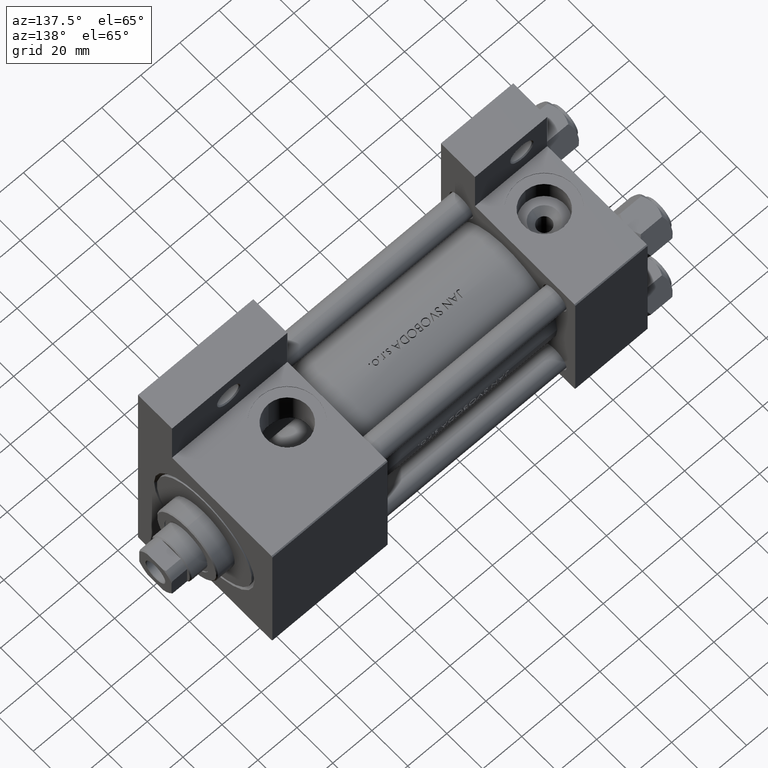
[diagram: clean part render]
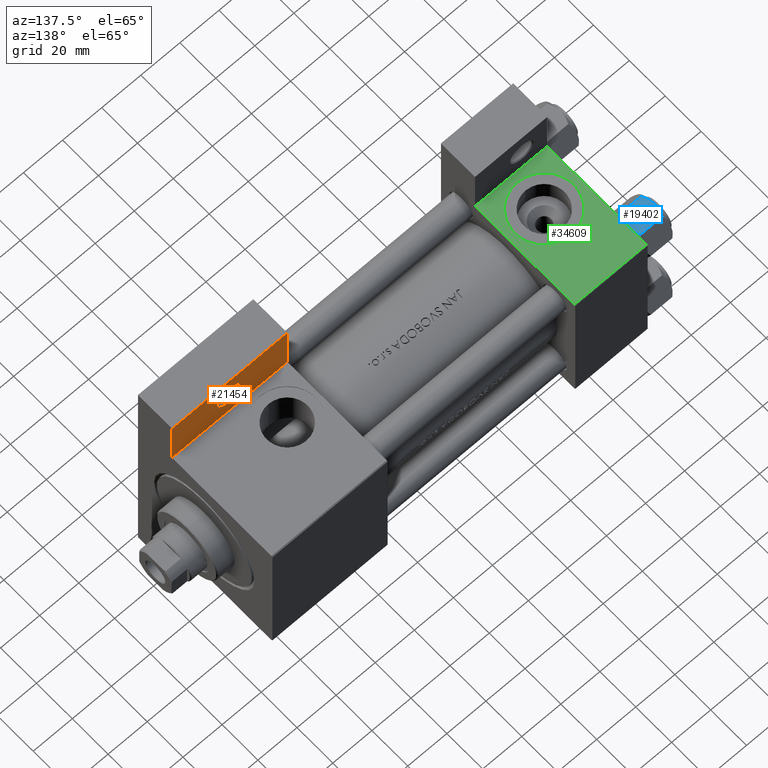
[diagram: same view with three faces highlighted in distinct colors, each labeled with its STEP entity id]
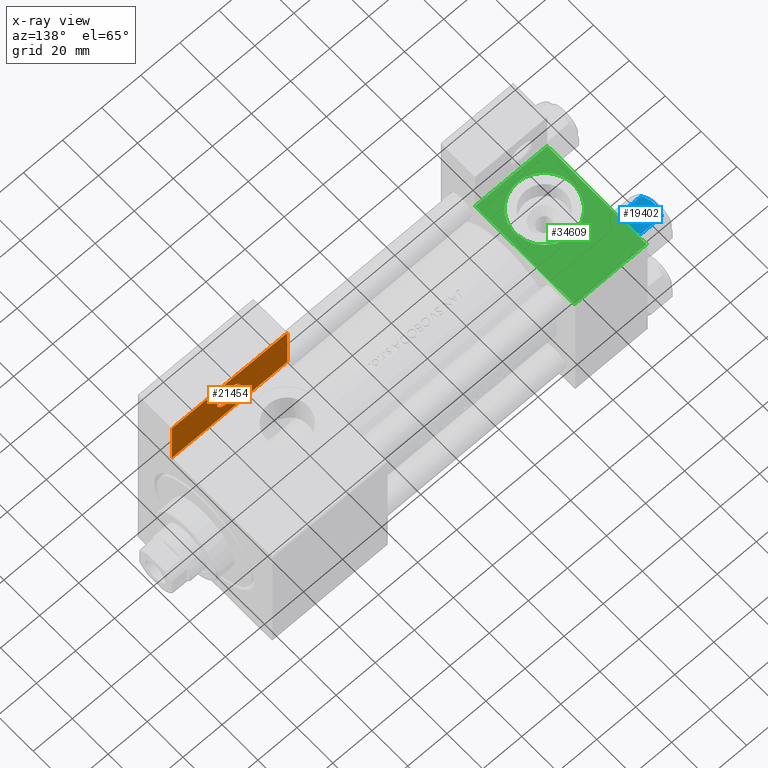
[diagram: x-ray of the same camera — body ghosted, the three highlighted faces saturated]
A machine part, auxiliary view with three faces highlighted in distinct colors.
The next image is the same camera in x-ray (body ghosted, the three faces saturated) — at least one of them is partly hidden behind the body in this view.
Their STEP definitions:

[orange] entity #21454 — the highlighted planar face has unit normal (0, -1, 0).
#479 = LINE ( 'NONE', #15669, #42305 ) ;
#1866 = ORIENTED_EDGE ( 'NONE', *, *, #17154, .T. ) ;
#4169 = CIRCLE ( 'NONE', #47095, 5.999500000000018929 ) ;
#4439 = ORIENTED_EDGE ( 'NONE', *, *, #11090, .F. ) ;
#4884 = VERTEX_POINT ( 'NONE', #49096 ) ;
#6172 = FACE_BOUND ( 'NONE', #34720, .T. ) ;
#6392 = CARTESIAN_POINT ( 'NONE',  ( 133.0000000000000000, -63.50000000000000000, -18.50000000000000000 ) ) ;
#9118 = AXIS2_PLACEMENT_3D ( 'NONE', #48513, #18129, #48027 ) ;
#9417 = CARTESIAN_POINT ( 'NONE',  ( 133.0000000000000000, -37.50000000000000000, -18.50000000000000000 ) ) ;
#9715 = EDGE_CURVE ( 'NONE', #29625, #40902, #479, .T. ) ;
#10869 = LINE ( 'NONE', #6392, #13237 ) ;
#11090 = EDGE_CURVE ( 'NONE', #31534, #29625, #39650, .T. ) ;
#11514 = AXIS2_PLACEMENT_3D ( 'NONE', #22309, #19046, #34260 ) ;
#12057 = EDGE_CURVE ( 'NONE', #33531, #4884, #4169, .T. ) ;
#12189 = VECTOR ( 'NONE', #34632, 1000.000000000000000 ) ;
#12933 = CARTESIAN_POINT ( 'NONE',  ( 192.0000000000000000, -37.50000000000000711, -18.50000000000000355 ) ) ;
#13237 = VECTOR ( 'NONE', #32816, 1000.000000000000000 ) ;
#13969 = EDGE_CURVE ( 'NONE', #48131, #31534, #15456, .T. ) ;
#14644 = CARTESIAN_POINT ( 'NONE',  ( 168.9995000000000402, -50.99999999999999289, -18.50000000000000000 ) ) ;
#15291 = CARTESIAN_POINT ( 'NONE',  ( 133.0000000000000000, -63.50000000000000000, -18.50000000000000000 ) ) ;
#15456 = LINE ( 'NONE', #45600, #12189 ) ;
#15669 = CARTESIAN_POINT ( 'NONE',  ( 192.0000000000000000, -63.50000000000002842, -18.50000000000000000 ) ) ;
#17154 = EDGE_CURVE ( 'NONE', #4884, #33531, #47270, .T. ) ;
#17887 = FACE_OUTER_BOUND ( 'NONE', #41734, .T. ) ;
#18129 = DIRECTION ( 'NONE',  ( 0.000000000000000000, 0.000000000000000000, -1.000000000000000000 ) ) ;
#19046 = DIRECTION ( 'NONE',  ( 0.000000000000000000, 0.000000000000000000, -1.000000000000000000 ) ) ;
#19797 = ORIENTED_EDGE ( 'NONE', *, *, #9715, .F. ) ;
#21454 = ADVANCED_FACE ( 'NONE', ( #6172, #17887 ), #32595, .F. ) ;
#22309 = CARTESIAN_POINT ( 'NONE',  ( 163.0000000000000284, -50.99999999999999289, -18.50000000000000000 ) ) ;
#29625 = VERTEX_POINT ( 'NONE', #12933 ) ;
#29986 = EDGE_CURVE ( 'NONE', #40902, #48131, #10869, .T. ) ;
#31534 = VERTEX_POINT ( 'NONE', #9417 ) ;
#32595 = PLANE ( 'NONE',  #9118 ) ;
#32816 = DIRECTION ( 'NONE',  ( -1.000000000000000000, 4.704334850106595794E-16, -0.000000000000000000 ) ) ;
#33280 = ORIENTED_EDGE ( 'NONE', *, *, #29986, .F. ) ;
#33531 = VERTEX_POINT ( 'NONE', #14644 ) ;
#33677 = DIRECTION ( 'NONE',  ( 0.000000000000000000, 0.000000000000000000, -1.000000000000000000 ) ) ;
#34260 = DIRECTION ( 'NONE',  ( -1.000000000000000000, 0.000000000000000000, 0.000000000000000000 ) ) ;
#34632 = DIRECTION ( 'NONE',  ( 0.000000000000000000, 1.000000000000000000, 0.000000000000000000 ) ) ;
#34720 = EDGE_LOOP ( 'NONE', ( #47427, #1866 ) ) ;
#37168 = DIRECTION ( 'NONE',  ( -1.000000000000000000, 0.000000000000000000, 0.000000000000000000 ) ) ;
#37665 = CARTESIAN_POINT ( 'NONE',  ( 163.0000000000000284, -50.99999999999999289, -18.50000000000000000 ) ) ;
#39650 = LINE ( 'NONE', #47364, #47063 ) ;
#40902 = VERTEX_POINT ( 'NONE', #42885 ) ;
#41734 = EDGE_LOOP ( 'NONE', ( #19797, #4439, #47735, #33280 ) ) ;
#42305 = VECTOR ( 'NONE', #49293, 1000.000000000000000 ) ;
#42885 = CARTESIAN_POINT ( 'NONE',  ( 192.0000000000000000, -63.50000000000002842, -18.50000000000000000 ) ) ;
#45600 = CARTESIAN_POINT ( 'NONE',  ( 133.0000000000000000, -63.50000000000000000, -18.50000000000000000 ) ) ;
#46863 = DIRECTION ( 'NONE',  ( 1.000000000000000000, -1.176083712526648949E-16, 0.000000000000000000 ) ) ;
#47063 = VECTOR ( 'NONE', #46863, 1000.000000000000000 ) ;
#47095 = AXIS2_PLACEMENT_3D ( 'NONE', #37665, #33677, #37168 ) ;
#47270 = CIRCLE ( 'NONE', #11514, 5.999500000000018929 ) ;
#47364 = CARTESIAN_POINT ( 'NONE',  ( 133.0000000000000000, -37.50000000000000000, -18.50000000000000000 ) ) ;
#47427 = ORIENTED_EDGE ( 'NONE', *, *, #12057, .T. ) ;
#47735 = ORIENTED_EDGE ( 'NONE', *, *, #13969, .F. ) ;
#48027 = DIRECTION ( 'NONE',  ( -1.000000000000000000, 0.000000000000000000, -0.000000000000000000 ) ) ;
#48131 = VERTEX_POINT ( 'NONE', #15291 ) ;
#48513 = CARTESIAN_POINT ( 'NONE',  ( 0.000000000000000000, 0.000000000000000000, -18.50000000000000000 ) ) ;
#49096 = CARTESIAN_POINT ( 'NONE',  ( 157.0005000000000166, -50.99999999999999289, -18.50000000000000000 ) ) ;
#49293 = DIRECTION ( 'NONE',  ( -0.000000000000000000, -1.000000000000000000, -0.000000000000000000 ) ) ;

[blue] entity #19402 — the highlighted planar face has unit normal (0, -0, -1).
#46 = CARTESIAN_POINT ( 'NONE',  ( -5.810000000000000497, -10.06321519197517844, -1.556784808024815225 ) ) ;
#294 = CARTESIAN_POINT ( 'NONE',  ( -3.474497094393253604, -10.06321519197517844, -0.5726960901042740248 ) ) ;
#699 = CARTESIAN_POINT ( 'NONE',  ( 1.502314598737159820E-15, -10.06321519197518022, 0.000000000000000000 ) ) ;
#4025 = CARTESIAN_POINT ( 'NONE',  ( 1.502314598737159820E-15, -10.06321519197518022, 0.000000000000000000 ) ) ;
#4781 = EDGE_CURVE ( 'NONE', #48478, #26692, #43896, .T. ) ;
#5413 = CARTESIAN_POINT ( 'NONE',  ( -4.908816193182379273, -10.06321519197517667, -12.89380709538398939 ) ) ;
#5631 = ORIENTED_EDGE ( 'NONE', *, *, #23964, .F. ) ;
#6409 = VECTOR ( 'NONE', #21484, 1000.000000000000000 ) ;
#7508 = CARTESIAN_POINT ( 'NONE',  ( 5.810000000000000497, -10.06321519197517667, -12.44321519197518633 ) ) ;
#8164 = CARTESIAN_POINT ( 'NONE',  ( 4.908816193182379273, -10.06321519197517844, -1.106192904616004835 ) ) ;
#8897 = CARTESIAN_POINT ( 'NONE',  ( -1.018274738099085086, -10.06321519197517667, -13.95177257919929126 ) ) ;
#10112 = CARTESIAN_POINT ( 'NONE',  ( 1.502314598737159820E-15, -10.06321519197518022, -14.00000000000000000 ) ) ;
#11004 = CARTESIAN_POINT ( 'NONE',  ( -3.958929922320422179, -10.06321519197517667, -0.7421398502353990789 ) ) ;
#11735 = CARTESIAN_POINT ( 'NONE',  ( -5.359707691559672860, -10.06321519197517667, -1.331638653804653405 ) ) ;
#12622 = CARTESIAN_POINT ( 'NONE',  ( 3.960942496020602555, -10.06321519197517667, -0.7115728323610392980 ) ) ;
#13263 = EDGE_CURVE ( 'NONE', #13796, #39935, #26143, .T. ) ;
#13796 = VERTEX_POINT ( 'NONE', #45505 ) ;
#14989 = CARTESIAN_POINT ( 'NONE',  ( -1.020132157807625450, -10.06321519197517667, 2.398797306624178560E-15 ) ) ;
#16403 = ORIENTED_EDGE ( 'NONE', *, *, #19321, .F. ) ;
#16675 = CARTESIAN_POINT ( 'NONE',  ( 1.502314598737159820E-15, -10.06321519197518022, 0.000000000000000000 ) ) ;
#16684 = CARTESIAN_POINT ( 'NONE',  ( 5.810000000000000497, -10.06321519197517667, -14.00000000000000000 ) ) ;
#17023 = AXIS2_PLACEMENT_3D ( 'NONE', #16684, #31167, #20430 ) ;
#17436 = CARTESIAN_POINT ( 'NONE',  ( -5.810000000000000497, -10.06321519197517844, -1.556784808024815225 ) ) ;
#17848 = CARTESIAN_POINT ( 'NONE',  ( 5.810000000000000497, -10.06321519197517667, -12.44321519197518633 ) ) ;
#18533 = VECTOR ( 'NONE', #48795, 1000.000000000000000 ) ;
#19321 = EDGE_CURVE ( 'NONE', #39935, #39127, #47279, .T. ) ;
#19402 = ADVANCED_FACE ( 'NONE', ( #28153 ), #27911, .F. ) ;
#20106 = CARTESIAN_POINT ( 'NONE',  ( 2.508586450168040383, -10.06321519197517667, -0.2975752632032270806 ) ) ;
#20430 = DIRECTION ( 'NONE',  ( -1.000000000000000000, -1.492877345935290102E-16, 0.000000000000000000 ) ) ;
#20612 = CARTESIAN_POINT ( 'NONE',  ( -5.810000000000000497, -10.06321519197517844, -12.44321519197518455 ) ) ;
#20648 = VERTEX_POINT ( 'NONE', #24123 ) ;
#21484 = DIRECTION ( 'NONE',  ( -0.000000000000000000, -0.000000000000000000, 1.000000000000000000 ) ) ;
#23964 = EDGE_CURVE ( 'NONE', #48478, #20648, #25026, .T. ) ;
#24111 = CARTESIAN_POINT ( 'NONE',  ( -1.772424303831128478, -10.06321519197517489, -13.86611290782776251 ) ) ;
#24123 = CARTESIAN_POINT ( 'NONE',  ( 1.502314598737159820E-15, -10.06321519197518022, -14.00000000000000000 ) ) ;
#25026 = B_SPLINE_CURVE_WITH_KNOTS ( 'NONE', 3,
 ( #17848, #40769, #41017, #44011, #48721, #29799, #25816, #10112 ),
 .UNSPECIFIED., .F., .F.,
 ( 4, 2, 2, 4 ),
 ( 0.01467889604968879332, 0.01619420351931635110, 0.01770951098894391063, 0.02074012592819902620 ),
 .UNSPECIFIED. ) ;
#25816 = CARTESIAN_POINT ( 'NONE',  ( 1.020132157807625672, -10.06321519197517489, -14.00000000000000178 ) ) ;
#26143 = LINE ( 'NONE', #37117, #18533 ) ;
#26692 = VERTEX_POINT ( 'NONE', #35825 ) ;
#27103 = CARTESIAN_POINT ( 'NONE',  ( 0.5112014849988887333, -10.06321519197517667, -0.009803979428911684807 ) ) ;
#27911 = PLANE ( 'NONE',  #17023 ) ;
#28088 = CARTESIAN_POINT ( 'NONE',  ( -3.960942496020602555, -10.06321519197517667, -13.28842716763895737 ) ) ;
#28153 = FACE_OUTER_BOUND ( 'NONE', #39073, .T. ) ;
#28461 = ORIENTED_EDGE ( 'NONE', *, *, #39389, .F. ) ;
#29200 = CARTESIAN_POINT ( 'NONE',  ( 5.810000000000000497, -10.06321519197517667, -14.00000000000000000 ) ) ;
#29799 = CARTESIAN_POINT ( 'NONE',  ( 2.013954290287967019, -10.06321519197517489, -13.84298883202400532 ) ) ;
#31167 = DIRECTION ( 'NONE',  ( -1.492877345935290102E-16, 1.000000000000000000, 0.000000000000000000 ) ) ;
#31586 = CARTESIAN_POINT ( 'NONE',  ( 1.502314598737159820E-15, -10.06321519197518022, -14.00000000000000000 ) ) ;
#35359 = B_SPLINE_CURVE_WITH_KNOTS ( 'NONE', 3,
 ( #31586, #43046, #39555, #8897, #24111, #39309, #28088, #5413, #20612 ),
 .UNSPECIFIED., .F., .F.,
 ( 4, 2, 1, 2, 4 ),
 ( 0.02074012592819902620, 0.02149589804477579011, 0.02225167016135255749, 0.02376321439450608530, 0.02678630286081314441 ),
 .UNSPECIFIED. ) ;
#35825 = CARTESIAN_POINT ( 'NONE',  ( 5.810000000000000497, -10.06321519197517667, -1.556784808024813671 ) ) ;
#37117 = CARTESIAN_POINT ( 'NONE',  ( -5.810000000000000497, -10.06321519197517844, -14.00000000000000000 ) ) ;
#37778 = B_SPLINE_CURVE_WITH_KNOTS ( 'NONE', 3,
 ( #699, #46274, #27103, #46515, #39296, #20106, #12622, #8164, #46748 ),
 .UNSPECIFIED., .F., .F.,
 ( 4, 2, 1, 2, 4 ),
 ( 0.02074012592819902620, 0.02149589804477579011, 0.02225167016135255402, 0.02376321439450608530, 0.02678630286081314441 ),
 .UNSPECIFIED. ) ;
#38159 = CARTESIAN_POINT ( 'NONE',  ( -4.900668367960797411, -10.06321519197517844, -1.121556683709773683 ) ) ;
#39073 = EDGE_LOOP ( 'NONE', ( #5631, #42627, #46643, #16403, #45543, #28461 ) ) ;
#39127 = VERTEX_POINT ( 'NONE', #16675 ) ;
#39296 = CARTESIAN_POINT ( 'NONE',  ( 1.772424303831127812, -10.06321519197517844, -0.1338870921722363216 ) ) ;
#39309 = CARTESIAN_POINT ( 'NONE',  ( -2.508586450168039494, -10.06321519197517844, -13.70242473679676998 ) ) ;
#39389 = EDGE_CURVE ( 'NONE', #20648, #13796, #35359, .T. ) ;
#39555 = CARTESIAN_POINT ( 'NONE',  ( -0.5112014849988886223, -10.06321519197517489, -13.99019602057109068 ) ) ;
#39935 = VERTEX_POINT ( 'NONE', #17436 ) ;
#40769 = CARTESIAN_POINT ( 'NONE',  ( 5.359707691559676412, -10.06321519197517844, -12.66836134619534882 ) ) ;
#41017 = CARTESIAN_POINT ( 'NONE',  ( 4.900668367960796523, -10.06321519197517489, -12.87844331629023209 ) ) ;
#42627 = ORIENTED_EDGE ( 'NONE', *, *, #4781, .T. ) ;
#43046 = CARTESIAN_POINT ( 'NONE',  ( -0.2543996698847483806, -10.06321519197517667, -14.00000000000000355 ) ) ;
#43896 = LINE ( 'NONE', #29200, #6409 ) ;
#44011 = CARTESIAN_POINT ( 'NONE',  ( 3.958929922320422179, -10.06321519197517489, -13.25786014976459803 ) ) ;
#45505 = CARTESIAN_POINT ( 'NONE',  ( -5.810000000000000497, -10.06321519197517844, -12.44321519197518455 ) ) ;
#45543 = ORIENTED_EDGE ( 'NONE', *, *, #13263, .F. ) ;
#45633 = CARTESIAN_POINT ( 'NONE',  ( -2.013954290287966575, -10.06321519197517844, -0.1570111679759964574 ) ) ;
#46274 = CARTESIAN_POINT ( 'NONE',  ( 0.2543996698847487137, -10.06321519197517844, 2.651777813537460036E-15 ) ) ;
#46515 = CARTESIAN_POINT ( 'NONE',  ( 1.018274738099085086, -10.06321519197517311, -0.04822742080070722276 ) ) ;
#46643 = ORIENTED_EDGE ( 'NONE', *, *, #47467, .F. ) ;
#46748 = CARTESIAN_POINT ( 'NONE',  ( 5.810000000000000497, -10.06321519197517667, -1.556784808024813671 ) ) ;
#47279 = B_SPLINE_CURVE_WITH_KNOTS ( 'NONE', 3,
 ( #46, #11735, #38159, #11004, #294, #45633, #14989, #4025 ),
 .UNSPECIFIED., .F., .F.,
 ( 4, 2, 2, 4 ),
 ( 0.01467889604968879505, 0.01619420351931635110, 0.01770951098894391063, 0.02074012592819902620 ),
 .UNSPECIFIED. ) ;
#47467 = EDGE_CURVE ( 'NONE', #39127, #26692, #37778, .T. ) ;
#48478 = VERTEX_POINT ( 'NONE', #7508 ) ;
#48721 = CARTESIAN_POINT ( 'NONE',  ( 3.474497094393254049, -10.06321519197517667, -13.42730390989572697 ) ) ;
#48795 = DIRECTION ( 'NONE',  ( -0.000000000000000000, -0.000000000000000000, 1.000000000000000000 ) ) ;

[green] entity #34609 — the highlighted planar face has unit normal (0, 0, -1).
#1190 = ORIENTED_EDGE ( 'NONE', *, *, #4397, .F. ) ;
#3987 = PLANE ( 'NONE',  #14107 ) ;
#4397 = EDGE_CURVE ( 'NONE', #22156, #36868, #23908, .T. ) ;
#7049 = CARTESIAN_POINT ( 'NONE',  ( 37.00000000000000000, -37.50000000000000000, -18.50000000000000355 ) ) ;
#7142 = EDGE_LOOP ( 'NONE', ( #45738, #1190 ) ) ;
#7199 = EDGE_CURVE ( 'NONE', #16020, #12524, #20857, .T. ) ;
#8049 = CARTESIAN_POINT ( 'NONE',  ( 18.50000000000000000, -37.50000000000000711, -3.469446951953614978E-15 ) ) ;
#11014 = LINE ( 'NONE', #45888, #13375 ) ;
#11309 = VERTEX_POINT ( 'NONE', #12203 ) ;
#11453 = CARTESIAN_POINT ( 'NONE',  ( 37.00000000000000000, -37.50000000000000711, 37.49999999999999289 ) ) ;
#12203 = CARTESIAN_POINT ( 'NONE',  ( 37.00000000000000000, -37.50000000000000711, 36.99999999999999289 ) ) ;
#12524 = VERTEX_POINT ( 'NONE', #26377 ) ;
#12800 = CARTESIAN_POINT ( 'NONE',  ( 37.00000000000000000, -37.50000000000000711, 37.49999999999999289 ) ) ;
#13375 = VECTOR ( 'NONE', #41668, 1000.000000000000000 ) ;
#14107 = AXIS2_PLACEMENT_3D ( 'NONE', #11453, #22928, #19667 ) ;
#14258 = EDGE_LOOP ( 'NONE', ( #26330, #48370, #37481, #34743 ) ) ;
#14767 = CARTESIAN_POINT ( 'NONE',  ( 18.50000000000000000, -37.50000000000000711, -15.00000000000000533 ) ) ;
#16020 = VERTEX_POINT ( 'NONE', #29080 ) ;
#18019 = DIRECTION ( 'NONE',  ( 0.000000000000000000, 0.000000000000000000, -1.000000000000000000 ) ) ;
#19501 = DIRECTION ( 'NONE',  ( 0.000000000000000000, -1.000000000000000000, -8.673617379884036705E-17 ) ) ;
#19667 = DIRECTION ( 'NONE',  ( 0.000000000000000000, -9.251858538542971581E-17, 1.000000000000000000 ) ) ;
#20600 = DIRECTION ( 'NONE',  ( 0.000000000000000000, 9.251858538542971581E-17, -1.000000000000000000 ) ) ;
#20857 = LINE ( 'NONE', #47239, #39021 ) ;
#22156 = VERTEX_POINT ( 'NONE', #38298 ) ;
#22315 = CIRCLE ( 'NONE', #23902, 15.00000000000000178 ) ;
#22770 = DIRECTION ( 'NONE',  ( 0.000000000000000000, 0.000000000000000000, -1.000000000000000000 ) ) ;
#22850 = EDGE_CURVE ( 'NONE', #29243, #12524, #44547, .T. ) ;
#22928 = DIRECTION ( 'NONE',  ( -0.000000000000000000, 1.000000000000000000, 9.251858538542971581E-17 ) ) ;
#23425 = FACE_BOUND ( 'NONE', #7142, .T. ) ;
#23477 = EDGE_CURVE ( 'NONE', #11309, #29243, #28251, .T. ) ;
#23902 = AXIS2_PLACEMENT_3D ( 'NONE', #37456, #37209, #18019 ) ;
#23908 = CIRCLE ( 'NONE', #44609, 15.00000000000000178 ) ;
#25114 = VECTOR ( 'NONE', #28004, 1000.000000000000000 ) ;
#26330 = ORIENTED_EDGE ( 'NONE', *, *, #22850, .F. ) ;
#26377 = CARTESIAN_POINT ( 'NONE',  ( -7.145701223179004046E-16, -37.50000000000000711, -18.50000000000000355 ) ) ;
#28004 = DIRECTION ( 'NONE',  ( 0.000000000000000000, 9.251858538542971581E-17, -1.000000000000000000 ) ) ;
#28251 = LINE ( 'NONE', #12800, #25114 ) ;
#29080 = CARTESIAN_POINT ( 'NONE',  ( 0.000000000000000000, -37.50000000000000711, 36.99999999999999289 ) ) ;
#29243 = VERTEX_POINT ( 'NONE', #7049 ) ;
#29847 = DIRECTION ( 'NONE',  ( -1.000000000000000000, 0.000000000000000000, 0.000000000000000000 ) ) ;
#34609 = ADVANCED_FACE ( 'NONE', ( #23425, #38617 ), #3987, .F. ) ;
#34743 = ORIENTED_EDGE ( 'NONE', *, *, #7199, .T. ) ;
#36810 = EDGE_CURVE ( 'NONE', #11309, #16020, #11014, .T. ) ;
#36868 = VERTEX_POINT ( 'NONE', #14767 ) ;
#37034 = VECTOR ( 'NONE', #29847, 1000.000000000000000 ) ;
#37209 = DIRECTION ( 'NONE',  ( 0.000000000000000000, -1.000000000000000000, -8.673617379884036705E-17 ) ) ;
#37456 = CARTESIAN_POINT ( 'NONE',  ( 18.50000000000000000, -37.50000000000000711, -3.469446951953614978E-15 ) ) ;
#37481 = ORIENTED_EDGE ( 'NONE', *, *, #36810, .T. ) ;
#38298 = CARTESIAN_POINT ( 'NONE',  ( 18.50000000000000355, -37.50000000000000711, 14.99999999999999822 ) ) ;
#38617 = FACE_OUTER_BOUND ( 'NONE', #14258, .T. ) ;
#39021 = VECTOR ( 'NONE', #20600, 1000.000000000000000 ) ;
#40567 = CARTESIAN_POINT ( 'NONE',  ( -7.145701223179000102E-16, -37.50000000000001421, -18.49999999999999645 ) ) ;
#41668 = DIRECTION ( 'NONE',  ( -1.000000000000000000, 0.000000000000000000, 0.000000000000000000 ) ) ;
#43148 = EDGE_CURVE ( 'NONE', #36868, #22156, #22315, .T. ) ;
#44547 = LINE ( 'NONE', #40567, #37034 ) ;
#44609 = AXIS2_PLACEMENT_3D ( 'NONE', #8049, #19501, #22770 ) ;
#45738 = ORIENTED_EDGE ( 'NONE', *, *, #43148, .F. ) ;
#45888 = CARTESIAN_POINT ( 'NONE',  ( 37.00000000000000000, -37.50000000000000711, 36.99999999999999289 ) ) ;
#47239 = CARTESIAN_POINT ( 'NONE',  ( 0.000000000000000000, -37.50000000000000711, 37.49999999999999289 ) ) ;
#48370 = ORIENTED_EDGE ( 'NONE', *, *, #23477, .F. ) ;